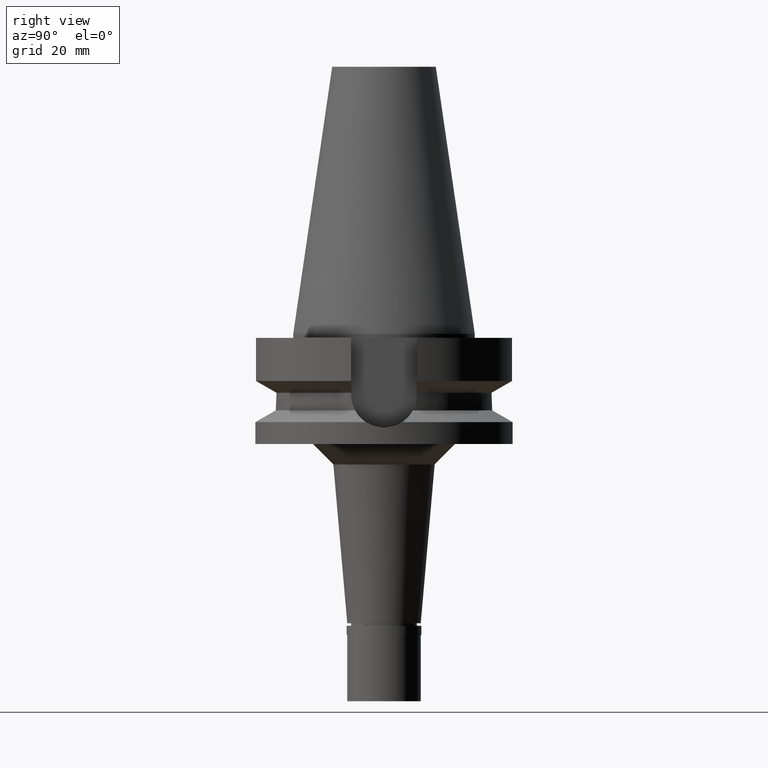
[diagram: clean part render]
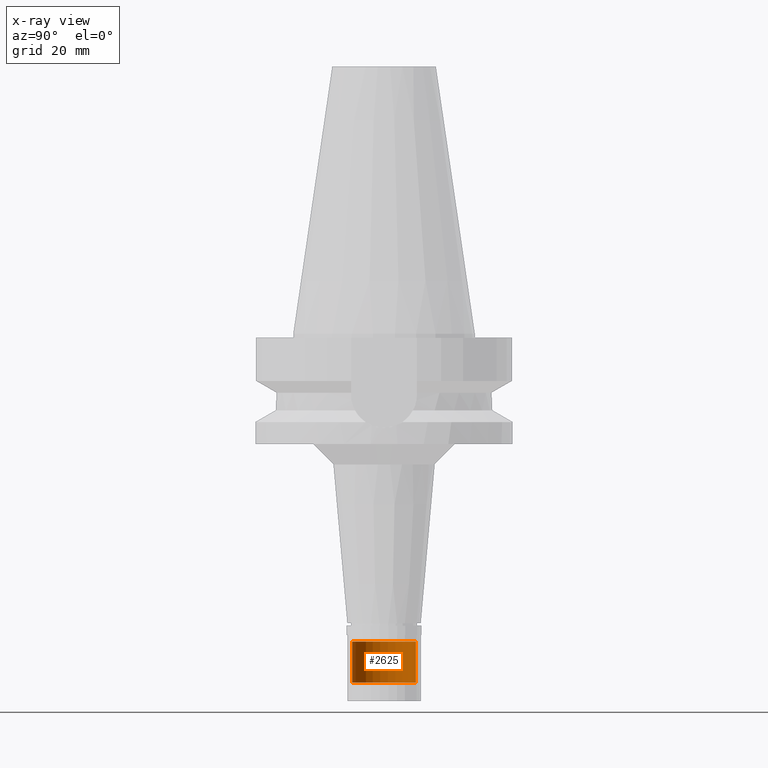
[diagram: x-ray — body ghosted, one internal face saturated and labeled with its STEP entity id]
A machine part, right view, then the same camera in x-ray: the body is ghosted and one INTERNAL B-rep face — a face not visible from any outside direction — is saturated and labeled: STEP entity #2625.
In plain terms, the highlighted cylindrical surface (edge-blend (fillet) strip) has radius 7.8 mm, axis along (0, 0, -1).
Its self-contained STEP definition (entity closure, byte-faithful):
#136 = DIRECTION ( 'NONE',  ( 0.0000000000000000000, 1.000000000000000000, 0.0000000000000000000 ) ) ;
#180 = CARTESIAN_POINT ( 'NONE',  ( 0.0000000000000000000, 2.117904174444999906E-14, -75.39999999999999147 ) ) ;
#266 = ORIENTED_EDGE ( 'NONE', *, *, #1241, .T. ) ;
#310 = DIRECTION ( 'NONE',  ( 0.0000000000000000000, 0.0000000000000000000, -1.000000000000000000 ) ) ;
#378 = DIRECTION ( 'NONE',  ( 0.0000000000000000000, 0.0000000000000000000, -1.000000000000000000 ) ) ;
#422 = EDGE_LOOP ( 'NONE', ( #1851, #568, #2494, #266 ) ) ;
#451 = DIRECTION ( 'NONE',  ( 0.0000000000000000000, 0.0000000000000000000, -1.000000000000000000 ) ) ;
#536 = CARTESIAN_POINT ( 'NONE',  ( 0.0000000000000000000, -7.799999999999999822, -75.39999999999999147 ) ) ;
#564 = VERTEX_POINT ( 'NONE', #2530 ) ;
#568 = ORIENTED_EDGE ( 'NONE', *, *, #2126, .F. ) ;
#625 = LINE ( 'NONE', #2241, #2618 ) ;
#930 = CARTESIAN_POINT ( 'NONE',  ( 0.0000000000000000000, 7.799999999999999822, -85.40000000000000568 ) ) ;
#932 = EDGE_CURVE ( 'NONE', #1875, #1842, #1325, .T. ) ;
#1037 = DIRECTION ( 'NONE',  ( 0.0000000000000000000, -1.000000000000000000, 0.0000000000000000000 ) ) ;
#1045 = VECTOR ( 'NONE', #451, 1000.000000000000000 ) ;
#1239 = AXIS2_PLACEMENT_3D ( 'NONE', #180, #310, #2459 ) ;
#1241 = EDGE_CURVE ( 'NONE', #564, #1875, #1576, .T. ) ;
#1325 = CIRCLE ( 'NONE', #2727, 7.799999999999999822 ) ;
#1576 = LINE ( 'NONE', #2497, #1045 ) ;
#1731 = CARTESIAN_POINT ( 'NONE',  ( 0.0000000000000000000, 2.117904174444999906E-14, -85.40000000000000568 ) ) ;
#1750 = EDGE_CURVE ( 'NONE', #2047, #564, #2159, .T. ) ;
#1842 = VERTEX_POINT ( 'NONE', #2331 ) ;
#1851 = ORIENTED_EDGE ( 'NONE', *, *, #932, .T. ) ;
#1875 = VERTEX_POINT ( 'NONE', #930 ) ;
#1948 = AXIS2_PLACEMENT_3D ( 'NONE', #2454, #378, #1037 ) ;
#1985 = DIRECTION ( 'NONE',  ( 0.0000000000000000000, 0.0000000000000000000, -1.000000000000000000 ) ) ;
#2047 = VERTEX_POINT ( 'NONE', #536 ) ;
#2126 = EDGE_CURVE ( 'NONE', #2047, #1842, #625, .T. ) ;
#2159 = CIRCLE ( 'NONE', #1239, 7.799999999999999822 ) ;
#2241 = CARTESIAN_POINT ( 'NONE',  ( 0.0000000000000000000, -7.799999999999999822, -75.39999999999999147 ) ) ;
#2331 = CARTESIAN_POINT ( 'NONE',  ( 0.0000000000000000000, -7.799999999999999822, -85.40000000000000568 ) ) ;
#2454 = CARTESIAN_POINT ( 'NONE',  ( 0.0000000000000000000, 2.117904174444999906E-14, 72.93999999999999773 ) ) ;
#2459 = DIRECTION ( 'NONE',  ( 0.0000000000000000000, -1.000000000000000000, 0.0000000000000000000 ) ) ;
#2494 = ORIENTED_EDGE ( 'NONE', *, *, #1750, .T. ) ;
#2497 = CARTESIAN_POINT ( 'NONE',  ( 0.0000000000000000000, 7.799999999999999822, -75.39999999999999147 ) ) ;
#2530 = CARTESIAN_POINT ( 'NONE',  ( 0.0000000000000000000, 7.799999999999999822, -75.39999999999999147 ) ) ;
#2618 = VECTOR ( 'NONE', #1985, 1000.000000000000000 ) ;
#2625 = ADVANCED_FACE ( 'NONE', ( #2695 ), #2907, .T. ) ;
#2695 = FACE_OUTER_BOUND ( 'NONE', #422, .T. ) ;
#2727 = AXIS2_PLACEMENT_3D ( 'NONE', #1731, #2921, #136 ) ;
#2907 = CYLINDRICAL_SURFACE ( 'NONE', #1948, 7.799999999999999822 ) ;
#2921 = DIRECTION ( 'NONE',  ( 0.0000000000000000000, 0.0000000000000000000, 1.000000000000000000 ) ) ;